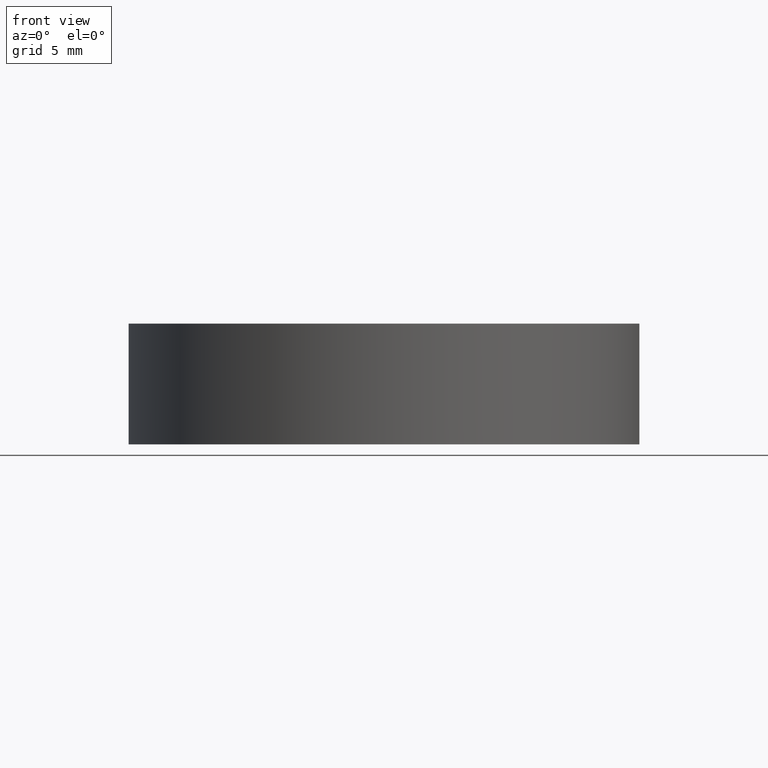
[diagram: clean part render]
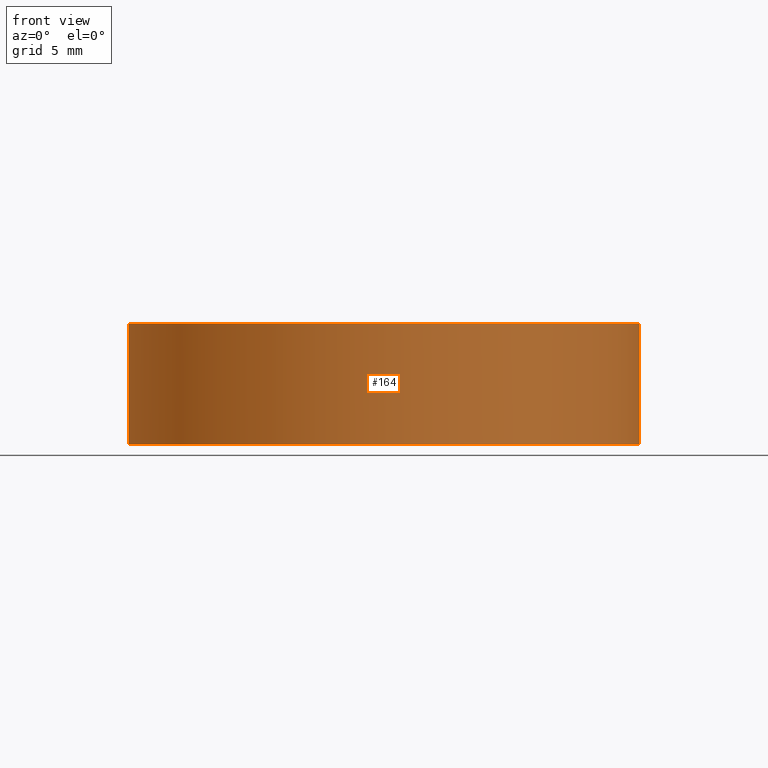
[diagram: same view with one face highlighted and labeled with its STEP entity id]
A machine part, front view. The second image highlights one B-rep face of the part: STEP entity #164.
In plain terms, the highlighted cylindrical surface (partial cylindrical patch) has radius 12.7 mm, axis along (-0, -0, -1).
Its self-contained STEP definition (entity closure, byte-faithful):
#2 = CIRCLE ( 'NONE', #113, 12.69999999999999929 ) ;
#8 = CARTESIAN_POINT ( 'NONE',  ( -12.69999999999999929, 0.000000000000000000, 0.000000000000000000 ) ) ;
#19 = EDGE_CURVE ( 'NONE', #165, #74, #125, .T. ) ;
#20 = CARTESIAN_POINT ( 'NONE',  ( -12.69999999999999929, 0.000000000000000000, 6.000000000000000000 ) ) ;
#25 = CARTESIAN_POINT ( 'NONE',  ( 3.816391647148975608E-14, 0.000000000000000000, 6.000000000000005329 ) ) ;
#27 = CARTESIAN_POINT ( 'NONE',  ( 12.69999999999999929, 1.555301434917138433E-15, 0.000000000000000000 ) ) ;
#40 = CARTESIAN_POINT ( 'NONE',  ( 12.69999999999999929, 1.555301434917138433E-15, 6.000000000000000000 ) ) ;
#41 = VECTOR ( 'NONE', #101, 1000.000000000000000 ) ;
#45 = EDGE_CURVE ( 'NONE', #74, #57, #50, .T. ) ;
#50 = LINE ( 'NONE', #20, #67 ) ;
#53 = EDGE_LOOP ( 'NONE', ( #182, #84, #73, #133 ) ) ;
#57 = VERTEX_POINT ( 'NONE', #8 ) ;
#63 = DIRECTION ( 'NONE',  ( 1.000000000000000000, 0.000000000000000000, 0.000000000000000000 ) ) ;
#67 = VECTOR ( 'NONE', #96, 1000.000000000000000 ) ;
#72 = CARTESIAN_POINT ( 'NONE',  ( -12.69999999999974527, 0.000000000000000000, 6.000000000000005329 ) ) ;
#73 = ORIENTED_EDGE ( 'NONE', *, *, #45, .T. ) ;
#74 = VERTEX_POINT ( 'NONE', #72 ) ;
#75 = FACE_OUTER_BOUND ( 'NONE', #53, .T. ) ;
#84 = ORIENTED_EDGE ( 'NONE', *, *, #19, .T. ) ;
#87 = EDGE_CURVE ( 'NONE', #57, #181, #2, .T. ) ;
#89 = DIRECTION ( 'NONE',  ( 0.000000000000000000, 0.000000000000000000, 1.000000000000000000 ) ) ;
#96 = DIRECTION ( 'NONE',  ( -0.000000000000000000, -0.000000000000000000, -1.000000000000000000 ) ) ;
#101 = DIRECTION ( 'NONE',  ( -0.000000000000000000, -0.000000000000000000, -1.000000000000000000 ) ) ;
#113 = AXIS2_PLACEMENT_3D ( 'NONE', #145, #89, #63 ) ;
#119 = DIRECTION ( 'NONE',  ( -1.000000000000000000, 0.000000000000000000, 0.000000000000000000 ) ) ;
#125 = CIRCLE ( 'NONE', #141, 12.69999999999978257 ) ;
#133 = ORIENTED_EDGE ( 'NONE', *, *, #87, .T. ) ;
#137 = DIRECTION ( 'NONE',  ( 1.000000000000000000, 0.000000000000000000, 0.000000000000000000 ) ) ;
#138 = CYLINDRICAL_SURFACE ( 'NONE', #158, 12.69999999999999929 ) ;
#141 = AXIS2_PLACEMENT_3D ( 'NONE', #25, #151, #137 ) ;
#145 = CARTESIAN_POINT ( 'NONE',  ( 0.000000000000000000, 0.000000000000000000, 0.000000000000000000 ) ) ;
#151 = DIRECTION ( 'NONE',  ( -0.000000000000000000, -0.000000000000000000, -1.000000000000000000 ) ) ;
#154 = CARTESIAN_POINT ( 'NONE',  ( 0.000000000000000000, 0.000000000000000000, 6.000000000000000000 ) ) ;
#158 = AXIS2_PLACEMENT_3D ( 'NONE', #154, #187, #119 ) ;
#164 = ADVANCED_FACE ( 'NONE', ( #75 ), #138, .T. ) ;
#165 = VERTEX_POINT ( 'NONE', #199 ) ;
#181 = VERTEX_POINT ( 'NONE', #27 ) ;
#182 = ORIENTED_EDGE ( 'NONE', *, *, #184, .F. ) ;
#183 = LINE ( 'NONE', #40, #41 ) ;
#184 = EDGE_CURVE ( 'NONE', #165, #181, #183, .T. ) ;
#187 = DIRECTION ( 'NONE',  ( -0.000000000000000000, -0.000000000000000000, -1.000000000000000000 ) ) ;
#199 = CARTESIAN_POINT ( 'NONE',  ( 12.69999999999982165, 1.555301434917127783E-15, 6.000000000000005329 ) ) ;